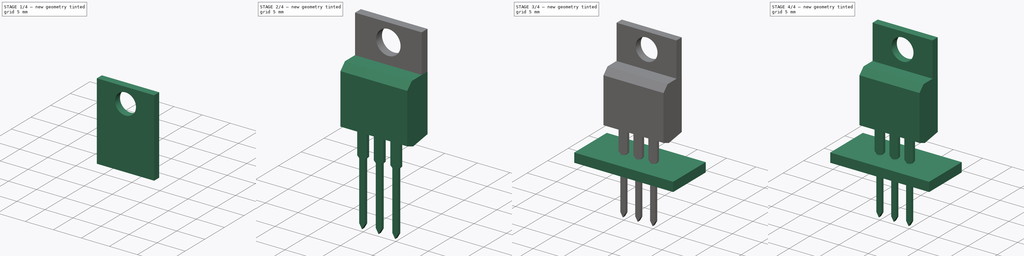
[diagram: build sequence overview — one tinted view per stage of 4, left to right]
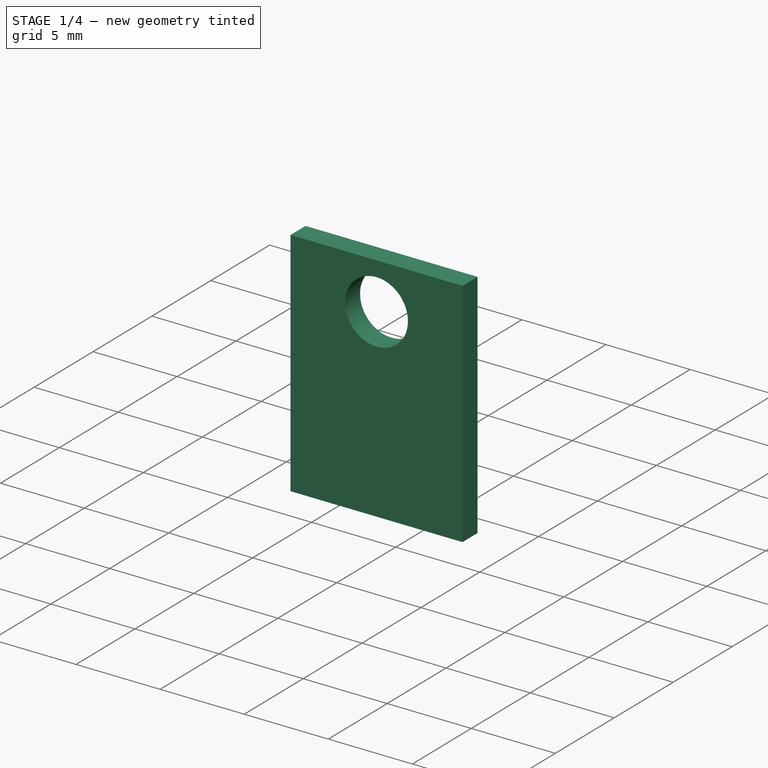
[diagram: stage 1 of 4 — iso view after this stage's code; geometry added in this stage tinted green]
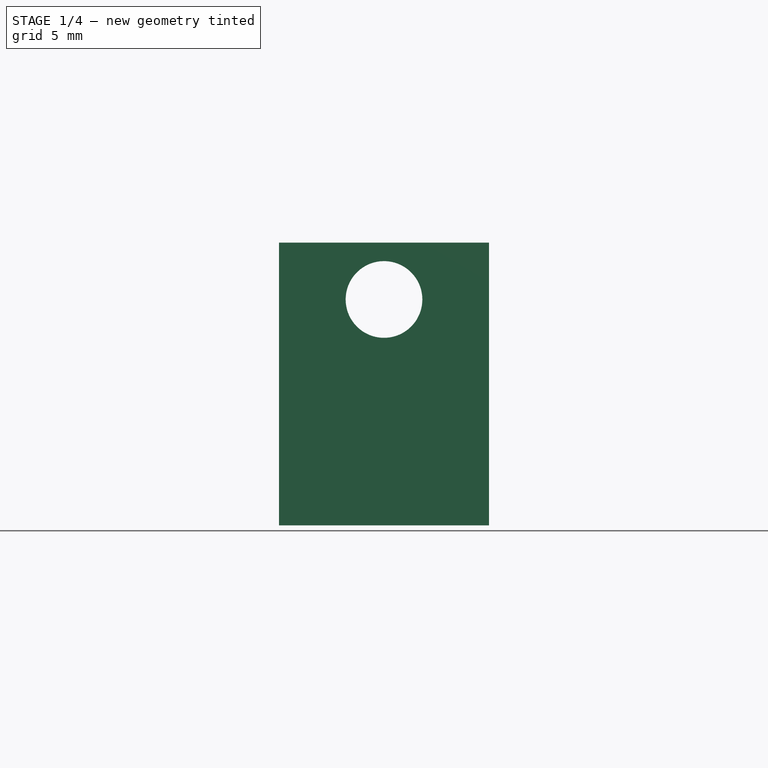
[diagram: stage 1 of 4 — front view after this stage's code; geometry added in this stage tinted green]
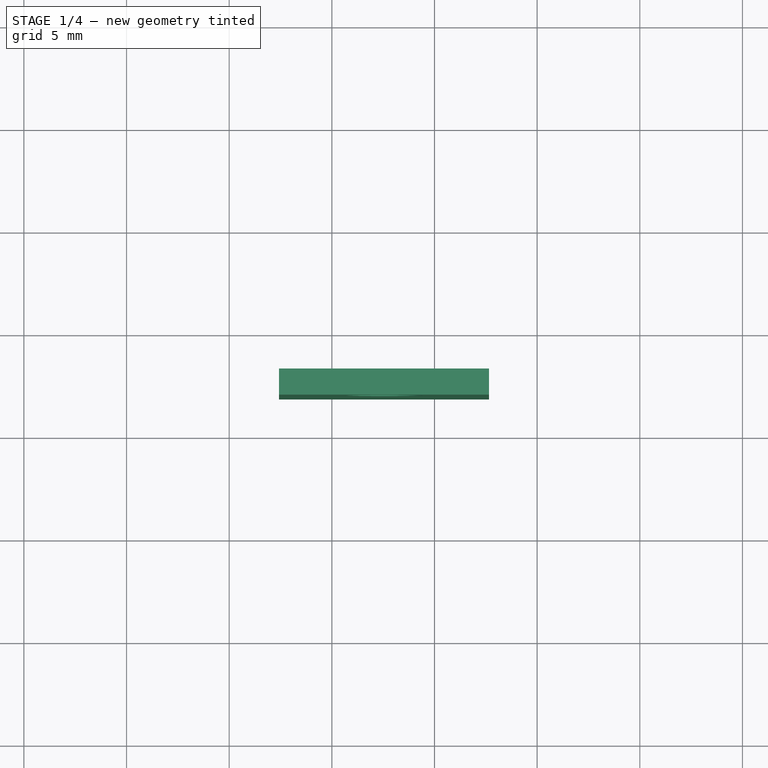
[diagram: stage 1 of 4 — top view after this stage's code; geometry added in this stage tinted green]
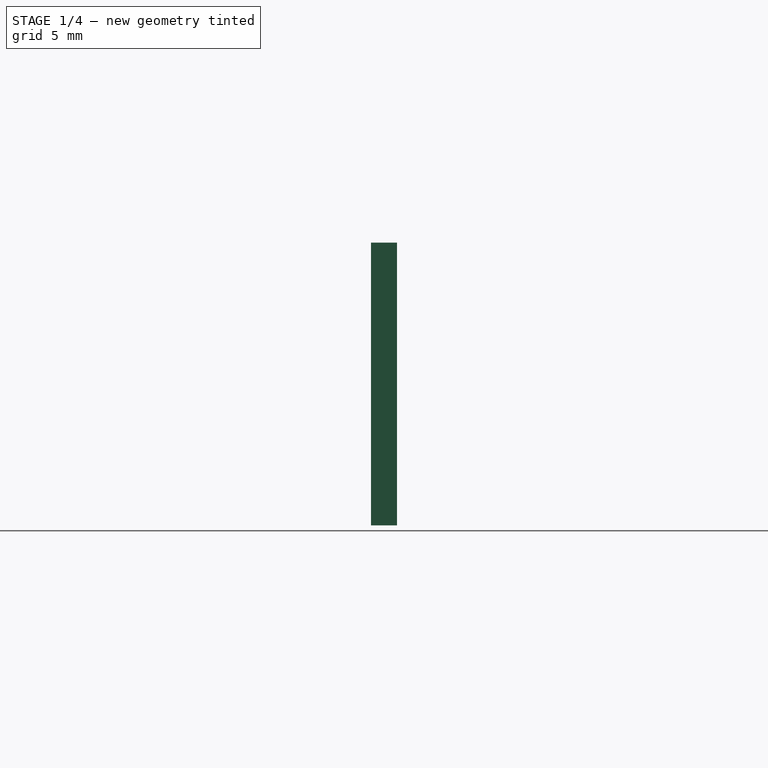
[diagram: stage 1 of 4 — right view after this stage's code; geometry added in this stage tinted green]
FCSTD DOCUMENT  (FreeCAD 0.16R6712 (Git))
Label: TO-220-3_Vertical
License: All rights reserved
LicenseURL: http://en.wikipedia.org/wiki/All_rights_reserved
objects: Part::FeaturePython×7, Sketcher::SketchObject×4, PartDesign::Pad×3, PartDesign::Pocket×1, App::DocumentObjectGroup×1, Part::MultiFuse×1
note: 20 computed .brp shape members not serialized (recipe doc carries the construction recipe); baked Part::Feature solids carry a one-line shape summary decoded from their .brp

FEATURE [Sketcher::SketchObject] Sketch004
  Placement = pos=(0,0,5) rot=(0,0,1;0rad)
  expr: Constraints[10] = (2.92 + 2.41) / 2 + (0.61 + 0.36) / 2 + 0.01
  expr: Constraints[9] = (1.14 + 1.4) / 2
  expr: Constraints[8] = (9.960000000000001 + 10.52) / 2 - 0.01
  sketch-geometry (5):
    g0: LineSegment StartX=-2.575 StartY=3.16 StartZ=0 EndX=7.655 EndY=3.16 EndZ=0
    g1: LineSegment StartX=7.655 StartY=3.16 StartZ=0 EndX=7.655 EndY=1.89 EndZ=0
    g2: LineSegment StartX=7.655 StartY=1.89 StartZ=0 EndX=-2.575 EndY=1.89 EndZ=0
    g3: LineSegment StartX=-2.575 StartY=1.89 StartZ=0 EndX=-2.575 EndY=3.16 EndZ=0
    g4: LineSegment [constr] StartX=0 StartY=3.16 StartZ=0 EndX=2.54 EndY=3.16 EndZ=0
  constraints (15):
    c: Coincident(g0,g1)
    c: Coincident(g1,g2)
    c: Coincident(g2,g3)
    c: Coincident(g3,g0)
    c: Horizontal(g0)
    c: Horizontal(g2)
    c: Vertical(g1)
    c: Vertical(g3)
    c: DistanceX(g0,g0) = 10.23
    c: DistanceY(g3,g3) = 1.27
    c: DistanceY(g-1,g0) = 3.16
    c: PointOnObject(g4,g-2)
    c: Horizontal(g4)
    c: DistanceX(g4,g4) = 2.54
    c: Symmetric(g0,g0,g4)
FEATURE [PartDesign::Pad] Pad002
  Length = 13.775
  Length2 = 100
  Placement = pos=(0,0,5) rot=(0,0,1;0rad)
  Sketch = -> Sketch004
  Type = 0
  expr: Length = (14.33 + 15.85) / 2 + (3.33 + 4.04) / 2 - 5
FEATURE [Sketcher::SketchObject] Sketch005
  ExternalGeometry = -> [Pad002]
  Placement = pos=(0,1.89,5) rot=(1,0,0;1.5708rad)
  Support = -> Pad002 [Face3]
  expr: Constraints[2] = (2.54 + 3) / 2
  expr: Constraints[1] = (3.53 + 3.94) / 2 / 2
  sketch-geometry (1):
    g0: Circle CenterX=2.54 CenterY=11.005 CenterZ=0 NormalX=0 NormalY=0 NormalZ=1 Radius=1.8675
  constraints (3):
    c: DistanceX(g-1,g0) = 2.54
    c: Radius(g0) = 1.8675
    c: DistanceY(g0,g-3) = 2.77
FEATURE [PartDesign::Pocket] Pocket
  Length = 5
  Placement = pos=(0,0,5) rot=(0,0,1;0rad)
  Sketch = -> Sketch005
  Type = 1
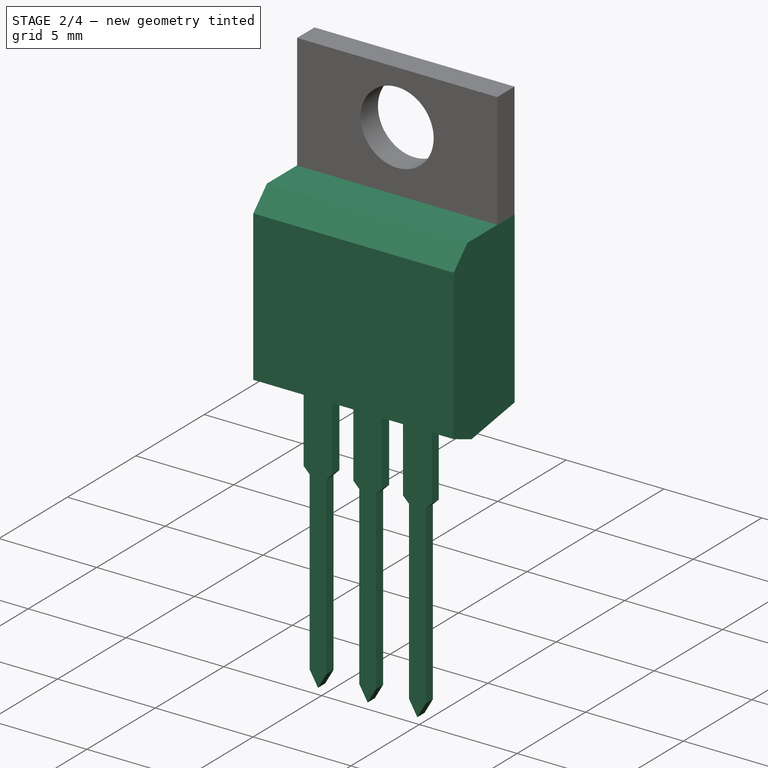
[diagram: stage 2 of 4 — iso view after this stage's code; geometry added in this stage tinted green]
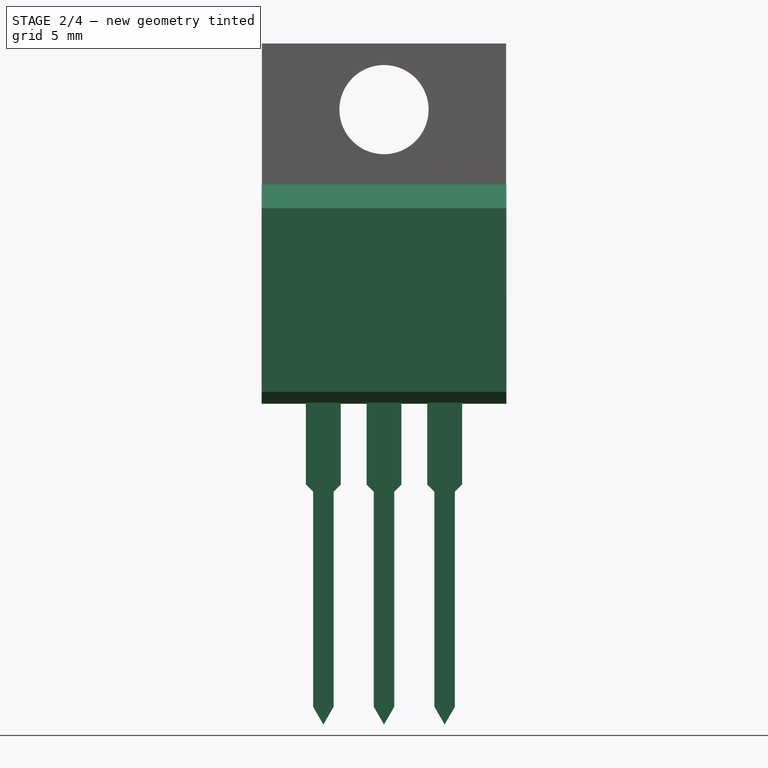
[diagram: stage 2 of 4 — front view after this stage's code; geometry added in this stage tinted green]
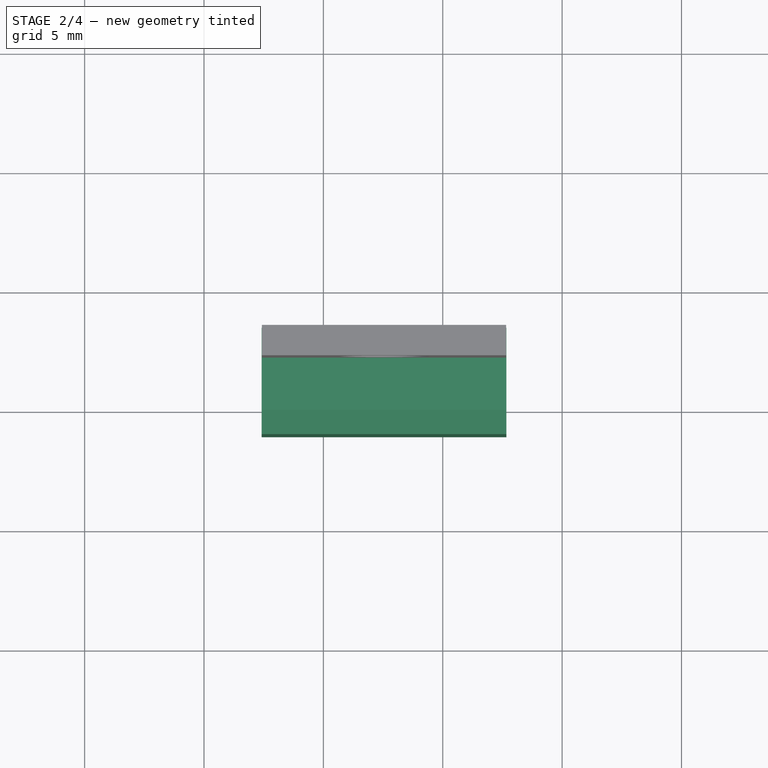
[diagram: stage 2 of 4 — top view after this stage's code; geometry added in this stage tinted green]
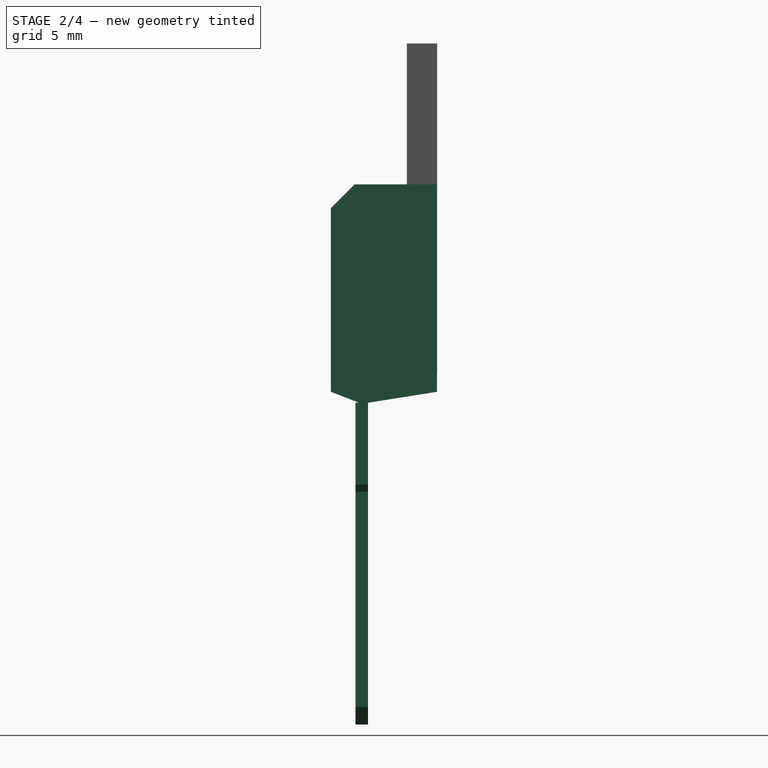
[diagram: stage 2 of 4 — right view after this stage's code; geometry added in this stage tinted green]
FEATURE [Sketcher::SketchObject] Sketch
  Placement = pos=(0,0,0) rot=(1,0,0;1.5708rad)
  expr: Constraints[3] = (0.69 + 1.02) / 2
  expr: Constraints[33] = 3.23 + 0.5
  expr: Constraints[36] = (10.05 + 9.449999999999999) / 2
  expr: Constraints[7] = (1.14 + 1.78) / 2
  sketch-geometry (49):
    g0: LineSegment [constr] StartX=-0.4275 StartY=0 StartZ=0 EndX=0.4275 EndY=0 EndZ=0
    g1: LineSegment [constr] StartX=-0.73 StartY=0.3025 StartZ=0 EndX=0.73 EndY=0.3025 EndZ=0
    g2: GeomPoint [constr] X=0 Y=0.3025 Z=0
    g3: LineSegment [constr] StartX=-0.4275 StartY=-9.00955 StartZ=0 EndX=0.4275 EndY=-9.00955 EndZ=0
    g4: GeomPoint [constr] X=0 Y=-9.00955 Z=0
    g5: LineSegment StartX=-0.73 StartY=0.3025 StartZ=0 EndX=-0.4275 EndY=0 EndZ=0
    g6: LineSegment StartX=-0.4275 StartY=0 StartZ=0 EndX=-0.4275 EndY=-9.00955 EndZ=0
    g7: LineSegment StartX=-0.4275 StartY=-9.00955 StartZ=0 EndX=0 EndY=-9.75 EndZ=0
    g8: LineSegment StartX=0 StartY=-9.75 StartZ=0 EndX=0.4275 EndY=-9.00955 EndZ=0
    g9: LineSegment StartX=0.4275 StartY=-9.00955 StartZ=0 EndX=0.4275 EndY=0 EndZ=0
    g10: LineSegment StartX=0.4275 StartY=0 StartZ=0 EndX=0.73 EndY=0.3025 EndZ=0
    g11: LineSegment StartX=0.73 StartY=0.3025 StartZ=0 EndX=0.73 EndY=3.73 EndZ=0
    g12: LineSegment StartX=0.73 StartY=3.73 StartZ=0 EndX=-0.73 EndY=3.73 EndZ=0
    g13: LineSegment StartX=-0.73 StartY=3.73 StartZ=0 EndX=-0.73 EndY=0.3025 EndZ=0
    g14: LineSegment [constr] StartX=0 StartY=-9.75 StartZ=0 EndX=0 EndY=0.3025 EndZ=0
    g15: LineSegment [constr] StartX=2.1125 StartY=0 StartZ=0 EndX=2.9675 EndY=0 EndZ=0
    g16: LineSegment [constr] StartX=1.81 StartY=0.3025 StartZ=0 EndX=3.27 EndY=0.3025 EndZ=0
    g17: GeomPoint [constr] X=2.54 Y=0.3025 Z=0
    g18: LineSegment [constr] StartX=2.1125 StartY=-9.00955 StartZ=0 EndX=2.9675 EndY=-9.00955 EndZ=0
    g19: GeomPoint [constr] X=2.54 Y=-9.00955 Z=0
    g20: LineSegment StartX=1.81 StartY=0.3025 StartZ=0 EndX=2.1125 EndY=0 EndZ=0
    g21: LineSegment StartX=2.1125 StartY=0 StartZ=0 EndX=2.1125 EndY=-9.00955 EndZ=0
    g22: LineSegment StartX=2.1125 StartY=-9.00955 StartZ=0 EndX=2.54 EndY=-9.75 EndZ=0
    g23: LineSegment StartX=2.54 StartY=-9.75 StartZ=0 EndX=2.9675 EndY=-9.00955 EndZ=0
    g24: LineSegment StartX=2.9675 StartY=-9.00955 StartZ=0 EndX=2.9675 EndY=0 EndZ=0
    g25: LineSegment StartX=2.9675 StartY=0 StartZ=0 EndX=3.27 EndY=0.3025 EndZ=0
    g26: LineSegment StartX=3.27 StartY=0.3025 StartZ=0 EndX=3.27 EndY=3.73 EndZ=0
    g27: LineSegment StartX=3.27 StartY=3.73 StartZ=0 EndX=1.81 EndY=3.73 EndZ=0
    g28: LineSegment StartX=1.81 StartY=3.73 StartZ=0 EndX=1.81 EndY=0.3025 EndZ=0
    g29: LineSegment [constr] StartX=2.54 StartY=-9.75 StartZ=0 EndX=2.54 EndY=0.3025 EndZ=0
    g30: LineSegment [constr] StartX=4.6525 StartY=0 StartZ=0 EndX=5.5075 EndY=0 EndZ=0
    g31: LineSegment [constr] StartX=4.35 StartY=0.3025 StartZ=0 EndX=5.81 EndY=0.3025 EndZ=0
    g32: GeomPoint [constr] X=5.08 Y=0.3025 Z=0
    g33: LineSegment [constr] StartX=4.6525 StartY=-9.00955 StartZ=0 EndX=5.5075 EndY=-9.00955 EndZ=0
    g34: GeomPoint [constr] X=5.08 Y=-9.00955 Z=0
    g35: LineSegment StartX=4.35 StartY=0.3025 StartZ=0 EndX=4.6525 EndY=0 EndZ=0
    g36: LineSegment StartX=4.6525 StartY=0 StartZ=0 EndX=4.6525 EndY=-9.00955 EndZ=0
    g37: LineSegment StartX=4.6525 StartY=-9.00955 StartZ=0 EndX=5.08 EndY=-9.75 EndZ=0
    g38: LineSegment StartX=5.08 StartY=-9.75 StartZ=0 EndX=5.5075 EndY=-9.00955 EndZ=0
    g39: LineSegment StartX=5.5075 StartY=-9.00955 StartZ=0 EndX=5.5075 EndY=0 EndZ=0
    g40: LineSegment StartX=5.5075 StartY=0 StartZ=0 EndX=5.81 EndY=0.3025 EndZ=0
    g41: LineSegment StartX=5.81 StartY=0.3025 StartZ=0 EndX=5.81 EndY=3.73 EndZ=0
    g42: LineSegment StartX=5.81 StartY=3.73 StartZ=0 EndX=4.35 EndY=3.73 EndZ=0
    g43: LineSegment StartX=4.35 StartY=3.73 StartZ=0 EndX=4.35 EndY=0.3025 EndZ=0
    g44: LineSegment [constr] StartX=5.08 StartY=-9.75 StartZ=0 EndX=5.08 EndY=0.3025 EndZ=0
    g45: GeomPoint [constr] X=2.54 Y=0 Z=0
    g46: GeomPoint [constr] X=5.08 Y=0 Z=0
    g47: LineSegment [constr] StartX=0 StartY=-9.75 StartZ=0 EndX=5.08 EndY=-9.75 EndZ=0
    g48: LineSegment [constr] StartX=-0.73 StartY=3.73 StartZ=0 EndX=4.35 EndY=3.73 EndZ=0
  constraints (117):
    c: PointOnObject(g0,g-1)
    c: Horizontal(g0)
    c: Symmetric(g0,g0,g-1)
    c: DistanceX(g0,g0) = 0.855
    c: Horizontal(g1)
    c: PointOnObject(g2,g-2)
    c: Symmetric(g1,g1,g2)
    c: DistanceX(g1,g1) = 1.46
    c: Horizontal(g3)
    c: Equal(g0,g3) = 0.8
    c: PointOnObject(g4,g-2)
    c: Symmetric(g3,g3,g4)
    c: Coincident(g5,g1)
    c: Coincident(g5,g0)
    c: Coincident(g6,g0)
    c: Coincident(g6,g3)
    c: Coincident(g7,g3)
    c: Coincident(g8,g7)
    c: Coincident(g8,g3)
    c: PointOnObject(g7,g-2)
    c: Coincident(g9,g3)
    c: Coincident(g9,g0)
    c: Coincident(g10,g0)
    c: Coincident(g10,g1)
    c: Coincident(g11,g1)
    c: Vertical(g11)
    c: Coincident(g12,g11)
    c: Horizontal(g12)
    c: Coincident(g13,g12)
    c: Coincident(g13,g1)
    c: Vertical(g13)
    c: Angle(g5,g13) = 2.35619
    c: Angle(g9,g8) = 2.61799
    c: DistanceY(g-1,g12) = 3.73
    c: Coincident(g14,g7)
    c: Coincident(g14,g2)
    c: DistanceY(g7,g-1) = 9.75
    c: Horizontal(g15)
    c: Equal(g0,g15) = 0.8
    c: Horizontal(g16)
    c: Symmetric(g16,g16,g17)
    c: Equal(g1,g16) = 1.355
    c: Horizontal(g18)
    c: Equal(g15,g18) = 0.8
    c: Symmetric(g18,g18,g19)
    c: Coincident(g20,g16)
    c: Coincident(g20,g15)
    c: Coincident(g21,g15)
    c: Coincident(g21,g18)
    c: Coincident(g22,g18)
    c: Coincident(g23,g22)
    c: Coincident(g23,g18)
    c: Coincident(g24,g18)
    c: Coincident(g24,g15)
    c: Coincident(g25,g24)
    c: Coincident(g25,g16)
    c: Coincident(g26,g16)
    c: Vertical(g26)
    c: Coincident(g27,g26)
    c: Horizontal(g27)
    c: Coincident(g28,g27)
    c: Coincident(g28,g16)
    c: Vertical(g28)
    c: Angle(g20,g28) = 2.35619
    c: Angle(g24,g23) = 2.61799
    c: Coincident(g29,g22)
    c: Coincident(g29,g17)
    c: Horizontal(g30)
    c: Equal(g0,g30) = 0.8
    c: Horizontal(g31)
    c: Symmetric(g31,g31,g32)
    c: Equal(g1,g31) = 1.355
    c: Horizontal(g33)
    c: Equal(g30,g33) = 0.8
    c: Symmetric(g33,g33,g34)
    c: Coincident(g35,g31)
    c: Coincident(g35,g30)
    c: Coincident(g36,g30)
    c: Coincident(g36,g33)
    c: Coincident(g37,g33)
    c: Coincident(g38,g37)
    c: Coincident(g38,g33)
    c: Coincident(g39,g33)
    c: Coincident(g39,g30)
    c: Coincident(g40,g30)
    c: Coincident(g40,g31)
    c: Coincident(g41,g31)
    c: Vertical(g41)
    c: Coincident(g42,g41)
    c: Horizontal(g42)
    c: Coincident(g43,g42)
    c: Coincident(g43,g31)
    c: Vertical(g43)
    c: Angle(g35,g43) = 2.35619
    c: Angle(g39,g38) = 2.61799
    c: Coincident(g44,g37)
    c: Coincident(g44,g32)
    c: PointOnObject(g15,g-1)
    c: PointOnObject(g45,g29)
    c: Symmetric(g15,g15,g45)
    c: Vertical(g29)
    c: Vertical(g44)
    c: PointOnObject(g46,g44)
    c: Symmetric(g30,g30,g46)
    c: PointOnObject(g19,g29)
    c: PointOnObject(g34,g44)
    c: DistanceX(g7,g22) = 2.54
    c: DistanceX(g22,g37) = 2.54
    c: Coincident(g47,g7)
    c: Coincident(g47,g37)
    c: Horizontal(g47)
    c: PointOnObject(g22,g47)
    c: PointOnObject(g30,g-1)
    c: Coincident(g48,g12)
    c: Coincident(g48,g42)
    c: Horizontal(g48)
    c: PointOnObject(g27,g48)
FEATURE [PartDesign::Pad] Pad
  Length = 0.525
  Length2 = 100
  Midplane = true
  Placement = pos=(0,0,0) rot=(1,0,0;1.5708rad)
  Reversed = true
  Sketch = -> Sketch
  Type = 0
  expr: Length = (0.6 + 0.45) / 2
FEATURE [Sketcher::SketchObject] Sketch001
  Placement = pos=(2.54,0,0) rot=(0.57735,0.57735,0.57735;2.0944rad)
  expr: Constraints[19] = (3.33 + 4.04) / 2
  expr: Constraints[16] = (16.07 + 15.67) / 2 - 6.68
  expr: Constraints[14] = (4.24 + 4.65) / 2
  expr: Constraints[13] = (2.92 + 2.41) / 2 + (0.61 + 0.36) / 2
  sketch-geometry (7):
    g0: LineSegment StartX=0 StartY=3.685 StartZ=0 EndX=-1.295 EndY=4.185 EndZ=0
    g1: LineSegment StartX=-1.295 StartY=4.185 StartZ=0 EndX=-1.295 EndY=11.875 EndZ=0
    g2: LineSegment StartX=-1.295 StartY=11.875 StartZ=0 EndX=-0.295 EndY=12.875 EndZ=0
    g3: LineSegment StartX=-0.295 StartY=12.875 StartZ=0 EndX=3.15 EndY=12.875 EndZ=0
    g4: LineSegment StartX=3.15 StartY=12.875 StartZ=0 EndX=3.15 EndY=4.185 EndZ=0
    g5: LineSegment StartX=3.15 StartY=4.185 StartZ=0 EndX=0 EndY=3.685 EndZ=0
    g6: LineSegment [constr] StartX=-1.295 StartY=4.185 StartZ=0 EndX=3.15 EndY=4.185 EndZ=0
  constraints (20):
    c: PointOnObject(g0,g-2)
    c: Coincident(g1,g0)
    c: Vertical(g1)
    c: Coincident(g2,g1)
    c: Horizontal(g3)
    c: Coincident(g4,g3)
    c: Vertical(g4)
    c: Coincident(g5,g4)
    c: Coincident(g5,g0)
    c: Coincident(g6,g0)
    c: Coincident(g6,g4)
    c: Horizontal(g6)
    c: Angle(g1,g2) = 2.35619
    c: DistanceX(g0,g4) = 3.15
    c: DistanceX(g1,g3) = 4.445
    c: DistanceY(g0,g4) = 0.5
    c: DistanceY(g0,g3) = 9.19
    c: Coincident(g2,g3)
    c: DistanceX(g1,g2) = 1
    c: DistanceY(g-1,g0) = 3.685
FEATURE [PartDesign::Pad] Pad001
  Length = 10.25
  Length2 = 100
  Midplane = true
  Placement = pos=(2.54,0,0) rot=(0.57735,0.57735,0.57735;2.0944rad)
  Sketch = -> Sketch001
  Type = 0
  expr: Length = (9.960000000000001 + 10.52) / 2 + 0.01
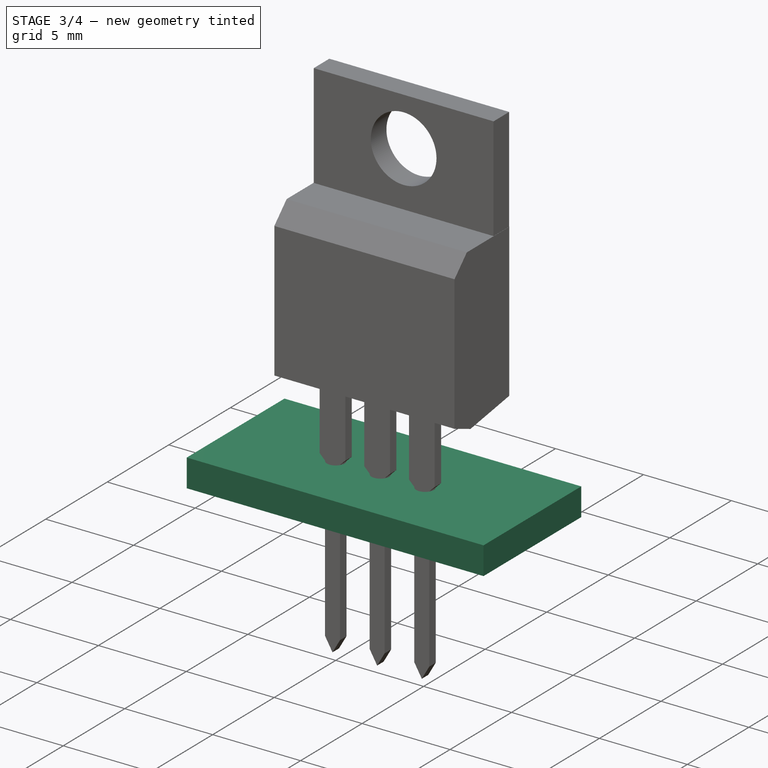
[diagram: stage 3 of 4 — iso view after this stage's code; geometry added in this stage tinted green]
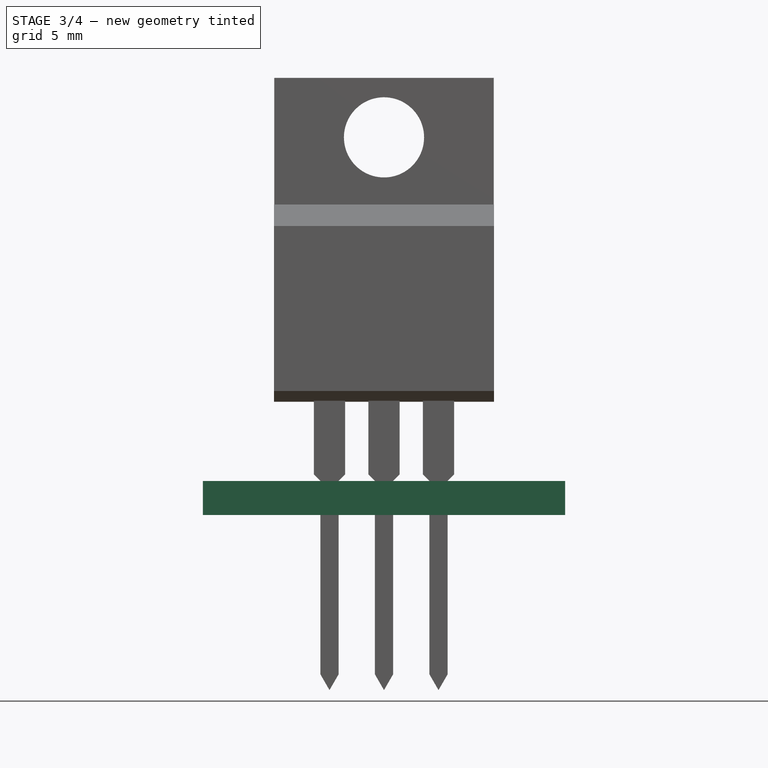
[diagram: stage 3 of 4 — front view after this stage's code; geometry added in this stage tinted green]
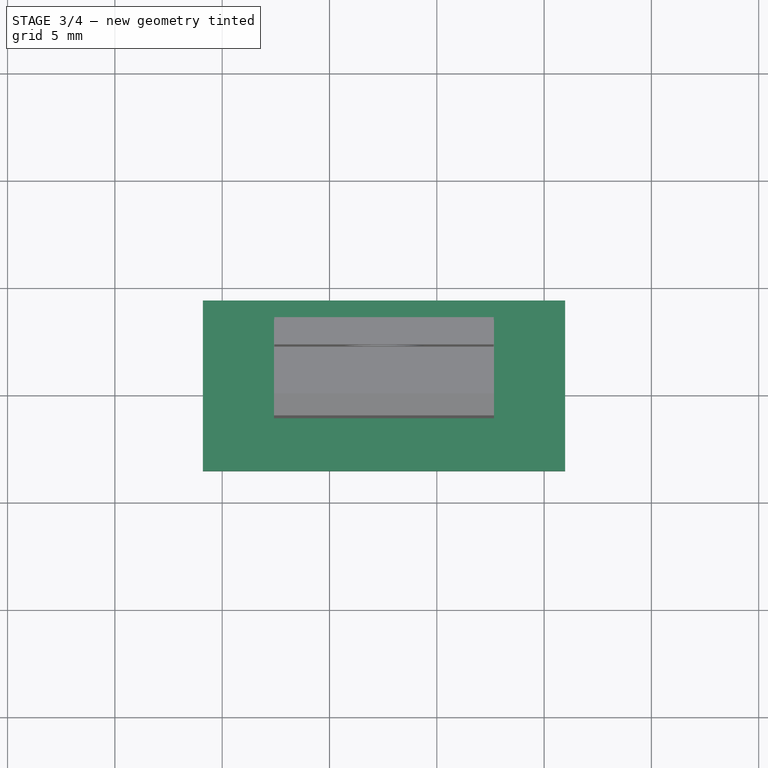
[diagram: stage 3 of 4 — top view after this stage's code; geometry added in this stage tinted green]
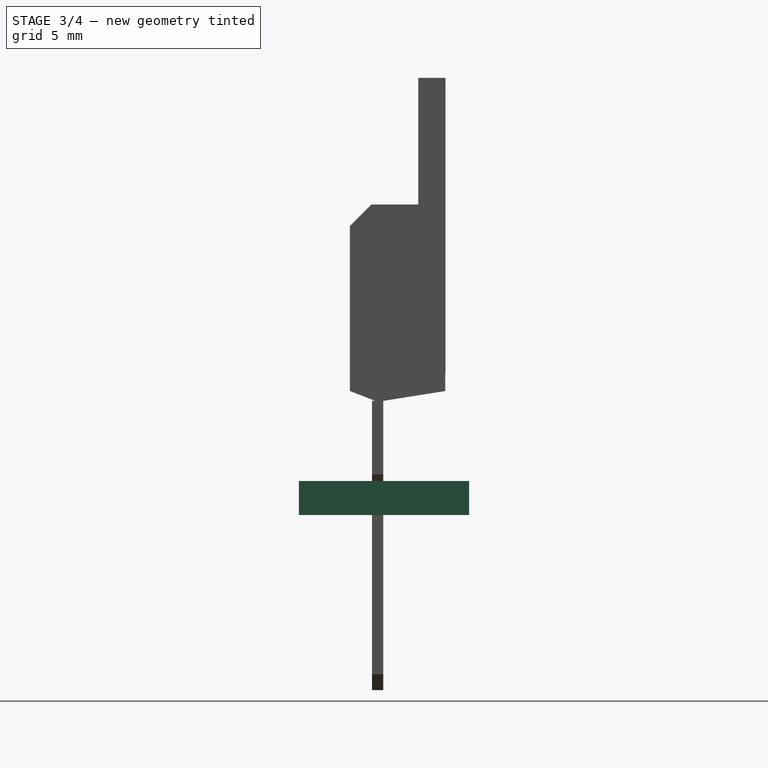
[diagram: stage 3 of 4 — right view after this stage's code; geometry added in this stage tinted green]
FEATURE [Part::FeaturePython] THPs  label="PTHs"  # a2plus imported part (geometry in sourceFile) (typed FeaturePython)
  fixedPosition = true
FEATURE [Part::FeaturePython] newPCB  label="Pcb"  # a2plus imported part (geometry in sourceFile) (typed FeaturePython)
  fixedPosition = true
FEATURE [App::DocumentObjectGroup] TO_220_3_Vertical_fp
  Group = -> [FCrtYd_lines,FFab_lines,Filk_lines,TopPads,BotPads,THPs,newPCB]
FEATURE [Part::MultiFuse] Pad001_mp_cp  label="TO-220-3_Vertical"
  Shapes = -> [Pad001,Pocket,Pad]
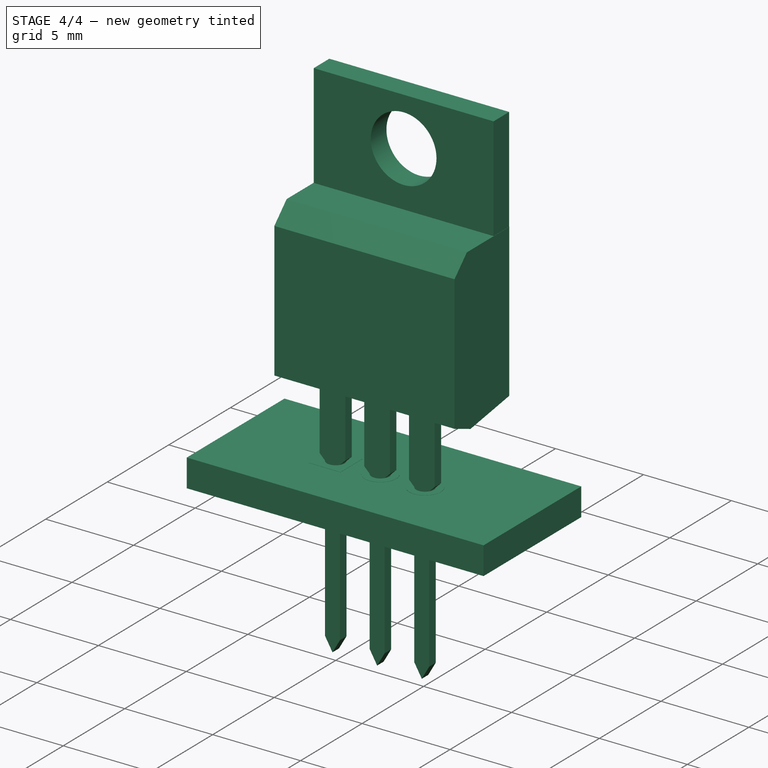
[diagram: stage 4 of 4 — iso view after this stage's code; geometry added in this stage tinted green]
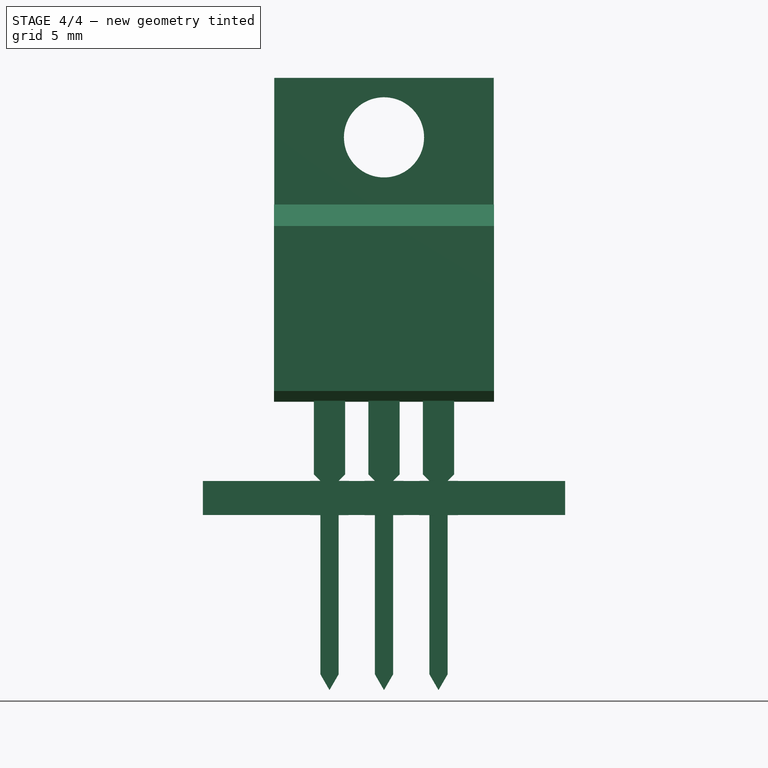
[diagram: stage 4 of 4 — front view after this stage's code; geometry added in this stage tinted green]
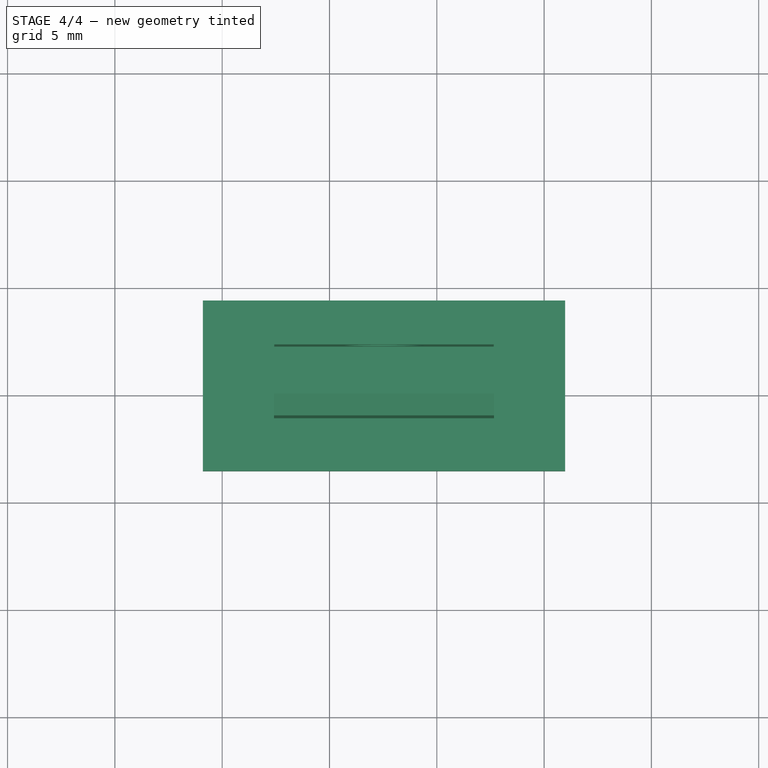
[diagram: stage 4 of 4 — top view after this stage's code; geometry added in this stage tinted green]
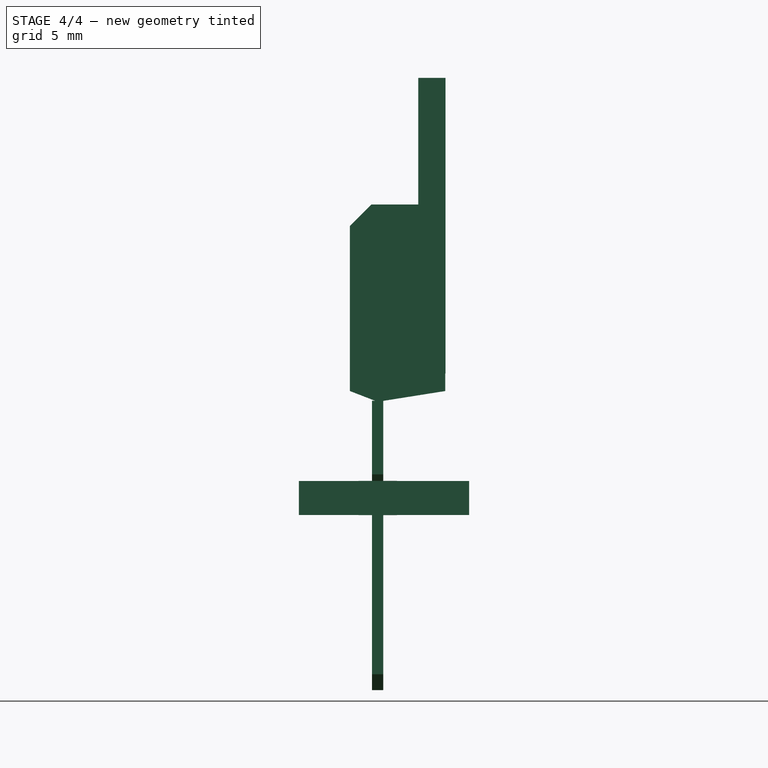
[diagram: stage 4 of 4 — right view after this stage's code; geometry added in this stage tinted green]
FEATURE [Part::FeaturePython] FCrtYd_lines  label="FCrtYd"  # a2plus imported part (geometry in sourceFile) (typed FeaturePython)
  fixedPosition = true
FEATURE [Part::FeaturePython] FFab_lines  label="FFab"  # a2plus imported part (geometry in sourceFile) (typed FeaturePython)
  fixedPosition = true
FEATURE [Part::FeaturePython] Filk_lines  label="FrontSilk"  # a2plus imported part (geometry in sourceFile) (typed FeaturePython)
  fixedPosition = true
FEATURE [Part::FeaturePython] TopPads  # a2plus imported part (geometry in sourceFile) (typed FeaturePython)
  fixedPosition = true
FEATURE [Part::FeaturePython] BotPads  # a2plus imported part (geometry in sourceFile) (typed FeaturePython)
  fixedPosition = true
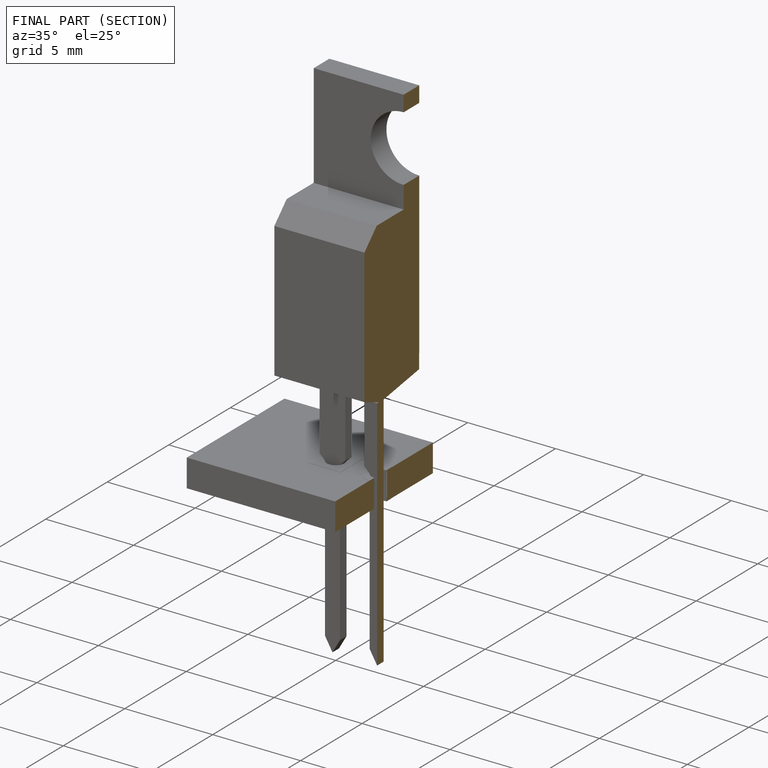
[diagram: finished part — half-section view (interior)]
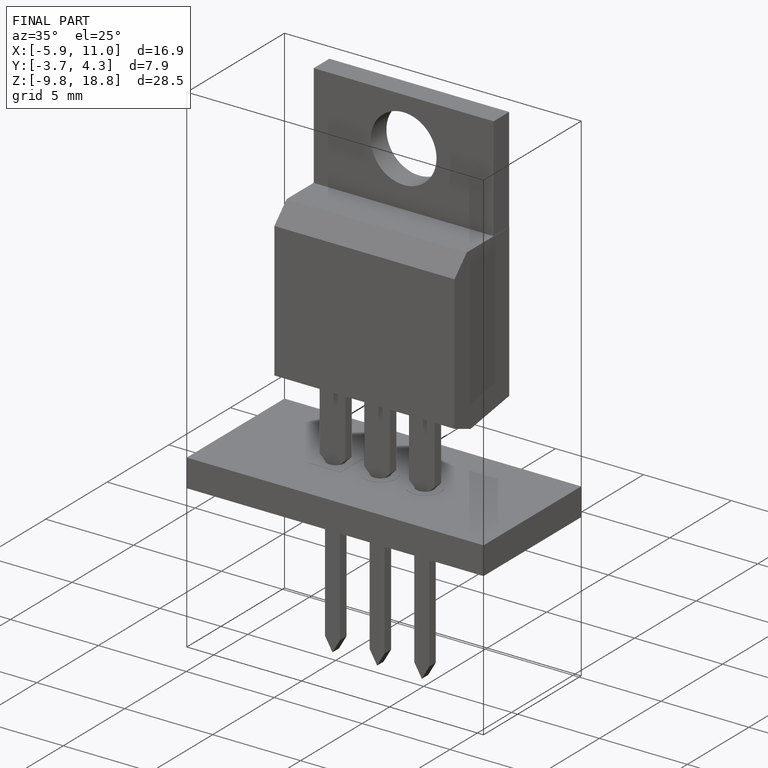
[diagram: finished part — iso view with bounding-box wireframe]
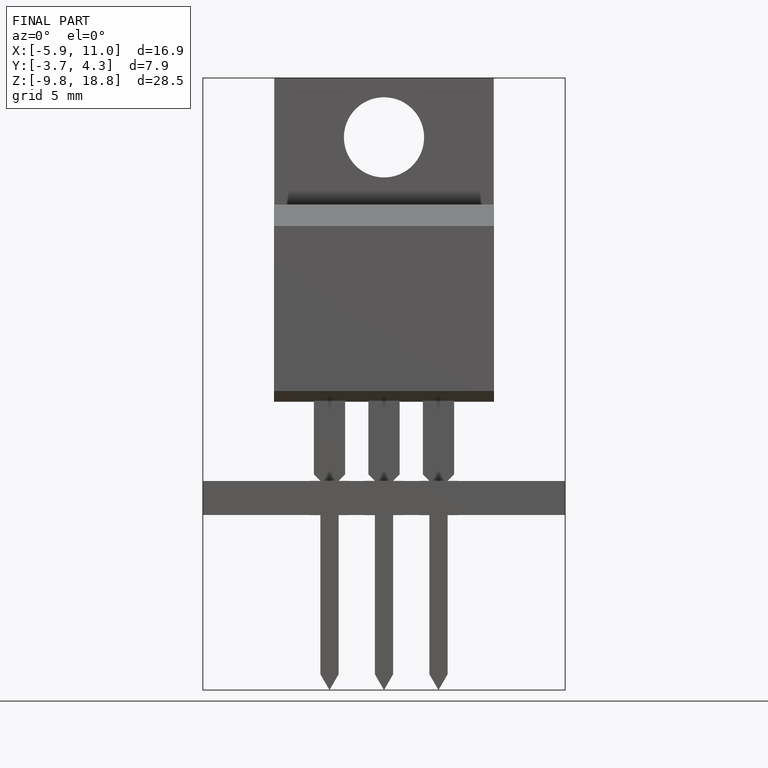
[diagram: finished part — front view with bounding-box wireframe]
